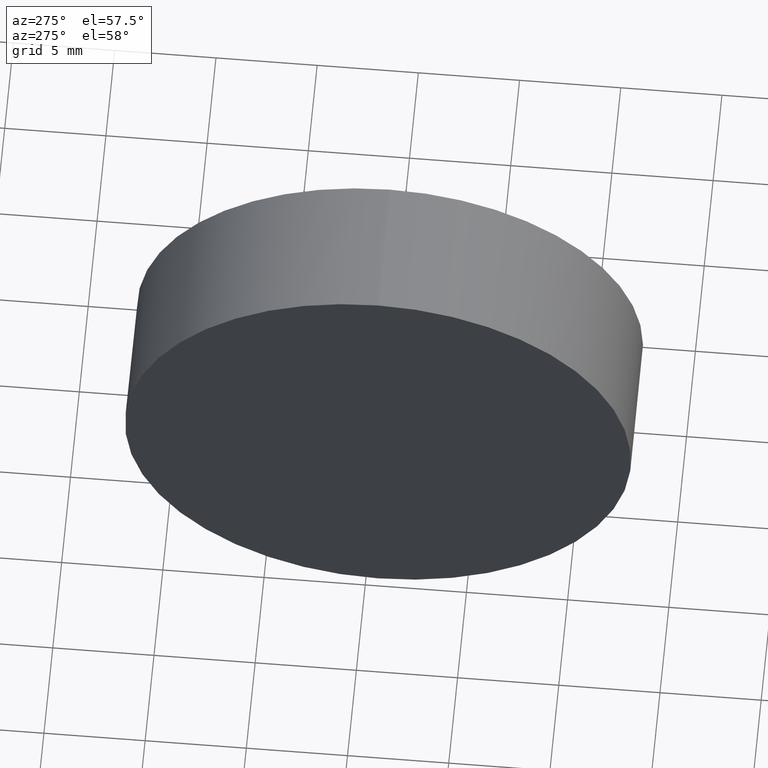
[diagram: clean part render]
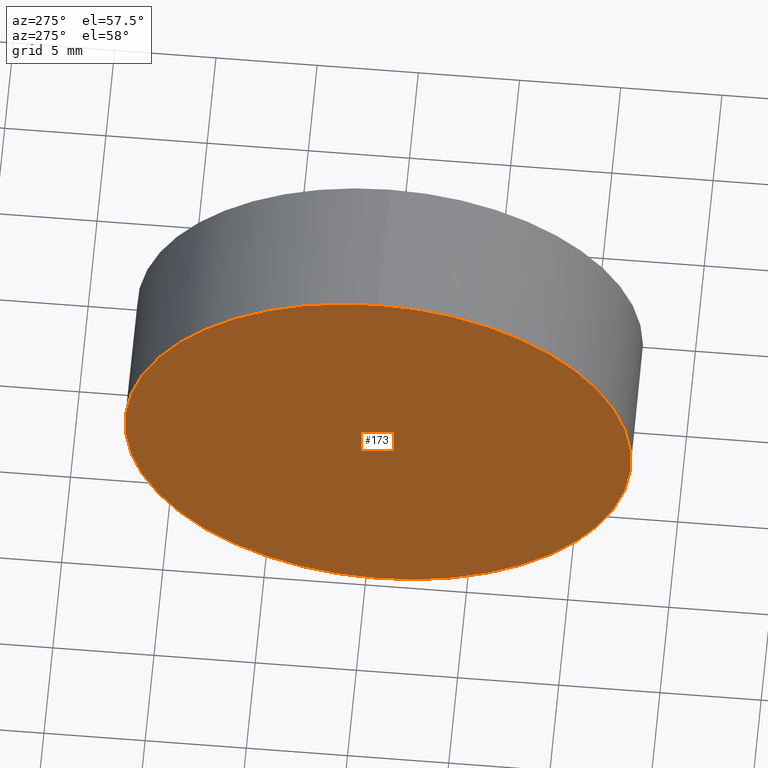
[diagram: same view with one face highlighted and labeled with its STEP entity id]
A machine part, auxiliary view. The second image highlights one B-rep face of the part: STEP entity #173.
In plain terms, the highlighted planar face has unit normal (1, 0, 0).
Its self-contained STEP definition (entity closure, byte-faithful):
#4 = VERTEX_POINT ( 'NONE', #110 ) ;
#7 = DIRECTION ( 'NONE',  ( 1.000000000000000000, 0.0000000000000000000, 0.0000000000000000000 ) ) ;
#12 = ORIENTED_EDGE ( 'NONE', *, *, #167, .T. ) ;
#28 = ORIENTED_EDGE ( 'NONE', *, *, #45, .T. ) ;
#42 = EDGE_LOOP ( 'NONE', ( #28, #12 ) ) ;
#45 = EDGE_CURVE ( 'NONE', #146, #4, #132, .T. ) ;
#60 = FACE_OUTER_BOUND ( 'NONE', #42, .T. ) ;
#62 = AXIS2_PLACEMENT_3D ( 'NONE', #120, #151, #152 ) ;
#67 = PLANE ( 'NONE',  #80 ) ;
#69 = CARTESIAN_POINT ( 'NONE',  ( 115.0926555349195200, 69.37802112337243400, 12.49999999999999600 ) ) ;
#80 = AXIS2_PLACEMENT_3D ( 'NONE', #125, #7, #103 ) ;
#87 = CARTESIAN_POINT ( 'NONE',  ( 115.0926555349195200, 69.37802112337243400, 0.0000000000000000000 ) ) ;
#89 = AXIS2_PLACEMENT_3D ( 'NONE', #87, #127, #102 ) ;
#102 = DIRECTION ( 'NONE',  ( 0.0000000000000000000, 0.0000000000000000000, 1.000000000000000000 ) ) ;
#103 = DIRECTION ( 'NONE',  ( 0.0000000000000000000, 0.0000000000000000000, -1.000000000000000000 ) ) ;
#110 = CARTESIAN_POINT ( 'NONE',  ( 115.0926555349195200, 69.37802112337243400, -12.49999999999999600 ) ) ;
#120 = CARTESIAN_POINT ( 'NONE',  ( 115.0926555349195200, 69.37802112337243400, 0.0000000000000000000 ) ) ;
#125 = CARTESIAN_POINT ( 'NONE',  ( 115.0926555349195200, 69.37802112337243400, 0.0000000000000000000 ) ) ;
#127 = DIRECTION ( 'NONE',  ( -1.000000000000000000, -0.0000000000000000000, -0.0000000000000000000 ) ) ;
#132 = CIRCLE ( 'NONE', #62, 12.49999999999999600 ) ;
#146 = VERTEX_POINT ( 'NONE', #69 ) ;
#151 = DIRECTION ( 'NONE',  ( -1.000000000000000000, -0.0000000000000000000, -0.0000000000000000000 ) ) ;
#152 = DIRECTION ( 'NONE',  ( 0.0000000000000000000, 0.0000000000000000000, 1.000000000000000000 ) ) ;
#167 = EDGE_CURVE ( 'NONE', #4, #146, #182, .T. ) ;
#173 = ADVANCED_FACE ( 'NONE', ( #60 ), #67, .F. ) ;
#182 = CIRCLE ( 'NONE', #89, 12.49999999999999600 ) ;